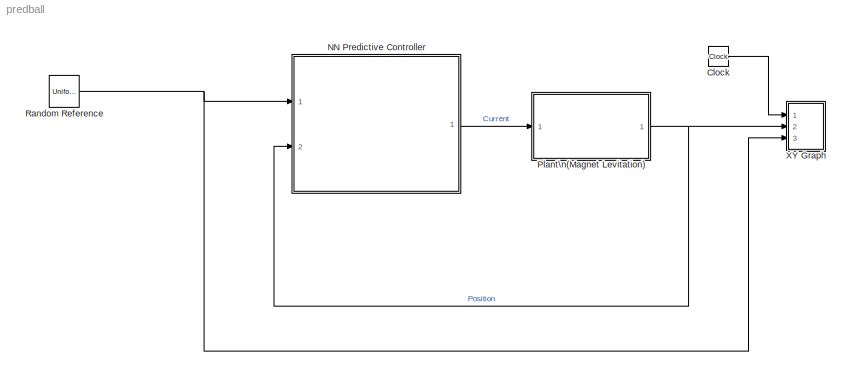
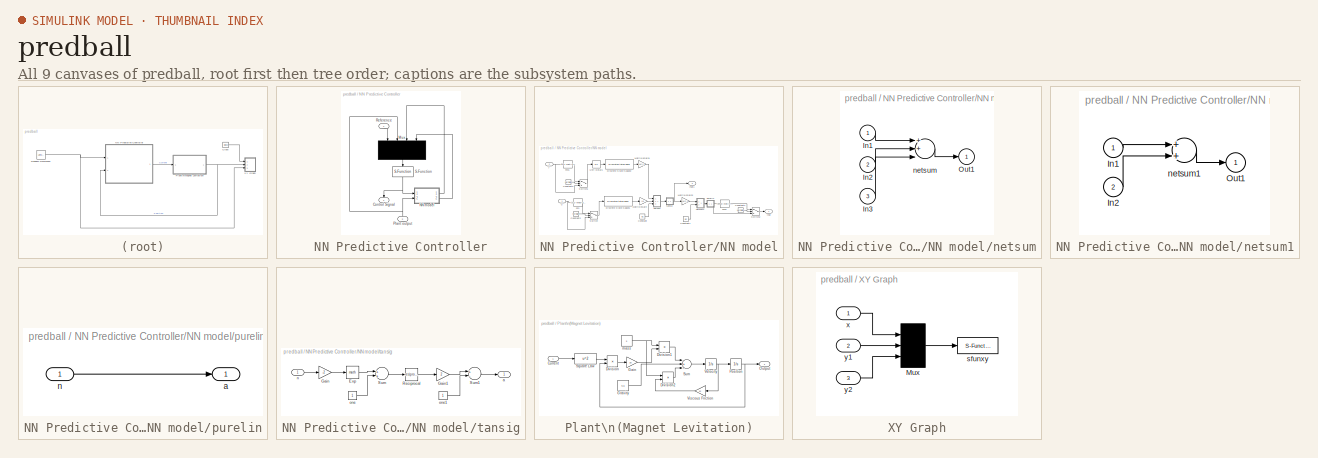
[diagram: thumbnail index - all 9 canvases of the model, root first then tree order]
MODEL predball
KIND model
BLOCK [Clock] Clock
  SID = 1
BLOCK [SubSystem] NN Predictive Controller
  OpenFcn = nncontrolutil('nnpredict','',gcbh,gcb);
  Ports = [2, 1]
  RequestExecContextInheritance = off
  SID = 2
  Variant = off
BLOCK [Outport] NN Predictive Controller/Control Signal
  IconDisplay = Port number
  SID = 54
BLOCK [Mux] NN Predictive Controller/Mux
  DisplayOption = signals
  Ports = [4, 1]
  SID = 5
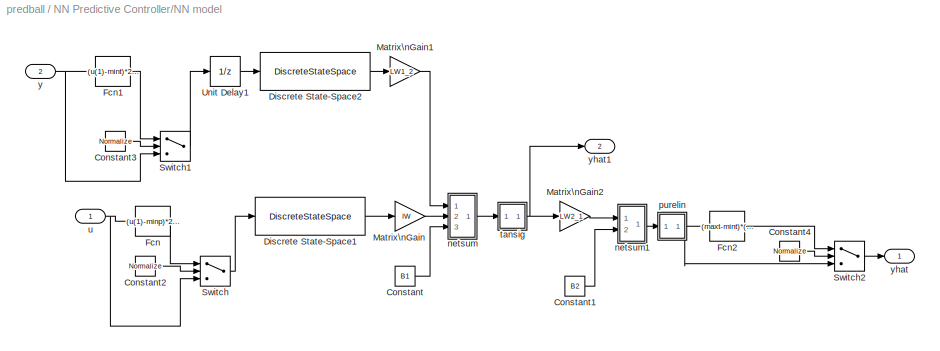
BLOCK [SubSystem] NN Predictive Controller/NN model
  Ports = [2, 2]
  RequestExecContextInheritance = off
  SID = 6
  Variant = off
BLOCK [Constant] NN Predictive Controller/NN model/Constant
  SID = 9
  Value = B1
BLOCK [Constant] NN Predictive Controller/NN model/Constant1
  SID = 10
  Value = B2
BLOCK [Constant] NN Predictive Controller/NN model/Constant2
  SID = 11
  Value = Normalize
BLOCK [Constant] NN Predictive Controller/NN model/Constant3
  SID = 12
  Value = Normalize
BLOCK [Constant] NN Predictive Controller/NN model/Constant4
  SID = 13
  Value = Normalize
BLOCK [DiscreteStateSpace] NN Predictive Controller/NN model/Discrete State-Space1
  A = [zeros(1,Ni-1);eye(Ni-2,Ni-1)] %0 %[0 0;1 0]
  B = eye(Ni-1,1) %1 %[1;0]
  C = [zeros(1,Ni-1);eye(Ni-1,Ni-1)] %[0;1] %[1 0;0 1]
  D = eye(Ni,1)  %[1;0] %[0;0]
  SID = 14
  SampleTime = Ts
BLOCK [DiscreteStateSpace] NN Predictive Controller/NN model/Discrete State-Space2
  A = [zeros(1,Nj-1);eye(Nj-2,Nj-1)] %0 %[0 0;1 0]
  B = eye(Nj-1,1) %1 %[1;0]
  C = [zeros(1,Nj-1);eye(Nj-1,Nj-1)] %[0;1] %[1 0;0 1]
  D = eye(Nj,1)  %[1;0] %[0;0]
  SID = 15
  SampleTime = Ts
BLOCK [Fcn] NN Predictive Controller/NN model/Fcn
  Expr = (u(1)-minp)*2/(maxp-minp) - 1
  SID = 16
BLOCK [Fcn] NN Predictive Controller/NN model/Fcn1
  Expr = (u(1)-mint)*2/(maxt-mint) - 1
  SID = 17
BLOCK [Fcn] NN Predictive Controller/NN model/Fcn2
  Expr = (maxt-mint)*(u(1)+1)/2 + mint
  SID = 18
BLOCK [Gain] NN Predictive Controller/NN model/Matrix\nGain
  Gain = IW
  Multiplication = Matrix(K*u)
  SID = 19
BLOCK [Gain] NN Predictive Controller/NN model/Matrix\nGain1
  Gain = LW1_2
  Multiplication = Matrix(K*u)
  SID = 20
BLOCK [Gain] NN Predictive Controller/NN model/Matrix\nGain2
  Gain = LW2_1
  Multiplication = Matrix(K*u)
  SID = 21
BLOCK [Switch] NN Predictive Controller/NN model/Switch
  SID = 22
  Threshold = 0.5
BLOCK [Switch] NN Predictive Controller/NN model/Switch1
  SID = 23
  Threshold = 0.5
BLOCK [Switch] NN Predictive Controller/NN model/Switch2
  SID = 24
  Threshold = 0.5
BLOCK [UnitDelay] NN Predictive Controller/NN model/Unit Delay1
  SID = 25
  SampleTime = Ts
BLOCK [SubSystem] NN Predictive Controller/NN model/netsum
  Ports = [3, 1]
  RequestExecContextInheritance = off
  SID = 26
  Variant = off
BLOCK [Inport] NN Predictive Controller/NN model/netsum/In1
  IconDisplay = Port number
  SID = 27
BLOCK [Inport] NN Predictive Controller/NN model/netsum/In2
  IconDisplay = Port number
  Port = 2
  SID = 28
BLOCK [Inport] NN Predictive Controller/NN model/netsum/In3
  IconDisplay = Port number
  Port = 3
  SID = 29
BLOCK [Outport] NN Predictive Controller/NN model/netsum/Out1
  IconDisplay = Port number
  SID = 31
BLOCK [Sum] NN Predictive Controller/NN model/netsum/netsum
  Inputs = 3
  Ports = [3, 1]
  SID = 30
BLOCK [SubSystem] NN Predictive Controller/NN model/netsum1
  Ports = [2, 1]
  RequestExecContextInheritance = off
  SID = 32
  Variant = off
BLOCK [Inport] NN Predictive Controller/NN model/netsum1/In1
  IconDisplay = Port number
  SID = 33
BLOCK [Inport] NN Predictive Controller/NN model/netsum1/In2
  IconDisplay = Port number
  Port = 2
  SID = 34
BLOCK [Outport] NN Predictive Controller/NN model/netsum1/Out1
  IconDisplay = Port number
  SID = 36
BLOCK [Sum] NN Predictive Controller/NN model/netsum1/netsum1
  Inputs = 2
  Ports = [2, 1]
  SID = 35
BLOCK [SubSystem] NN Predictive Controller/NN model/purelin
  Ports = [1, 1]
  RequestExecContextInheritance = off
  SID = 37
  Variant = off
BLOCK [Outport] NN Predictive Controller/NN model/purelin/a
  IconDisplay = Port number
  SID = 39
BLOCK [Inport] NN Predictive Controller/NN model/purelin/n
  IconDisplay = Port number
  SID = 38
BLOCK [SubSystem] NN Predictive Controller/NN model/tansig
  Ports = [1, 1]
  RequestExecContextInheritance = off
  SID = 40
  Variant = off
BLOCK [Math] NN Predictive Controller/NN model/tansig/Exp
  Ports = [1, 1]
  SID = 42
BLOCK [Gain] NN Predictive Controller/NN model/tansig/Gain
  Gain = -2
  SID = 43
BLOCK [Gain] NN Predictive Controller/NN model/tansig/Gain1
  Gain = 2
  SID = 44
BLOCK [Math] NN Predictive Controller/NN model/tansig/Reciprocal
  Operator = reciprocal
  Ports = [1, 1]
  SID = 45
BLOCK [Sum] NN Predictive Controller/NN model/tansig/Sum
  Ports = [2, 1]
  SID = 46
BLOCK [Sum] NN Predictive Controller/NN model/tansig/Sum1
  Inputs = +-
  Ports = [2, 1]
  SID = 47
BLOCK [Outport] NN Predictive Controller/NN model/tansig/a
  IconDisplay = Port number
  SID = 50
BLOCK [Inport] NN Predictive Controller/NN model/tansig/n
  IconDisplay = Port number
  SID = 41
BLOCK [Constant] NN Predictive Controller/NN model/tansig/one
  SID = 48
BLOCK [Constant] NN Predictive Controller/NN model/tansig/one1
  SID = 49
BLOCK [Inport] NN Predictive Controller/NN model/u
  IconDisplay = Port number
  SID = 7
BLOCK [Inport] NN Predictive Controller/NN model/y
  IconDisplay = Port number
  Port = 2
  SID = 8
BLOCK [Outport] NN Predictive Controller/NN model/yhat
  IconDisplay = Port number
  SID = 51
BLOCK [Outport] NN Predictive Controller/NN model/yhat1
  IconDisplay = Port number
  Port = 2
  SID = 52
BLOCK [Inport] NN Predictive Controller/Plant output
  IconDisplay = Port number
  Port = 2
  SID = 4
BLOCK [Inport] NN Predictive Controller/Reference
  IconDisplay = Port number
  SID = 3
BLOCK [S-Function] NN Predictive Controller/S-Function
  EnableBusSupport = off
  FunctionName = predopt
  Parameters = N2,Ts,Nu,maxiter,csrchfun,rho,alpha,S1,IW,LW1_2,LW2_1,B1,B2,Ni,Nj,min_i,max_i,minp,maxp,mint,maxt,Normalize
  Ports = [1, 1]
  SFunctionDeploymentMode = off
  SID = 53
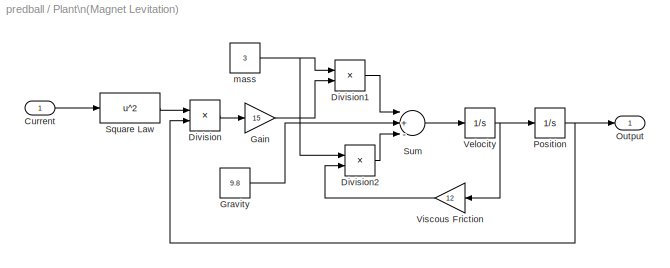
BLOCK [SubSystem] Plant\n(Magnet Levitation)
  Ports = [1, 1]
  RequestExecContextInheritance = off
  SID = 55
  Variant = off
BLOCK [Inport] Plant\n(Magnet Levitation)/Current
  IconDisplay = Port number
  SID = 56
BLOCK [Product] Plant\n(Magnet Levitation)/Division
  Inputs = */
  Ports = [2, 1]
  RndMeth = Floor
  SID = 57
BLOCK [Product] Plant\n(Magnet Levitation)/Division1
  Inputs = /*
  Ports = [2, 1]
  RndMeth = Floor
  SID = 58
BLOCK [Product] Plant\n(Magnet Levitation)/Division2
  Inputs = /*
  Ports = [2, 1]
  RndMeth = Floor
  SID = 59
BLOCK [Gain] Plant\n(Magnet Levitation)/Gain
  Gain = 15
  SID = 60
BLOCK [Constant] Plant\n(Magnet Levitation)/Gravity
  SID = 61
  Value = 9.8
BLOCK [Outport] Plant\n(Magnet Levitation)/Output
  IconDisplay = Port number
  SID = 68
BLOCK [Integrator] Plant\n(Magnet Levitation)/Position
  InitialCondition = .5
  Ports = [1, 1]
  SID = 62
BLOCK [Fcn] Plant\n(Magnet Levitation)/Square Law
  Expr = u^2
  SID = 63
BLOCK [Sum] Plant\n(Magnet Levitation)/Sum
  Inputs = |+--
  Ports = [3, 1]
  SID = 64
BLOCK [Integrator] Plant\n(Magnet Levitation)/Velocity
  Ports = [1, 1]
  SID = 65
BLOCK [Gain] Plant\n(Magnet Levitation)/Viscous Friction
  Gain = 12
  SID = 66
BLOCK [Constant] Plant\n(Magnet Levitation)/mass
  SID = 67
  Value = 3
BLOCK [UniformRandomNumber] Random Reference
  Maximum = 3
  Minimum = 0.5
  SID = 69
  SampleTime = 5
  Seed = round(now)
BLOCK [SubSystem] XY Graph
  CopyFcn = sfunxy2([],[],[],'CopyBlock')
  DeleteFcn = sfunxy2([],[],[],'DeleteBlock')
  LoadFcn = sfunxy2([],[],[],'LoadBlock')
  NameChangeFcn = sfunxy2([],[],[],'NameChange')
  Ports = [3]
  RequestExecContextInheritance = off
  SID = 70
  StartFcn = sfunxy2([],[],[],'Start')
  StopFcn = sfunxy2([],[],[],'Stop')
  Variant = off
BLOCK [Mux] XY Graph/Mux
  Inputs = 3
  Ports = [3, 1]
  SID = 70:4
BLOCK [S-Function] XY Graph/sfunxy
  EnableBusSupport = off
  FunctionName = sfunxy2
  Parameters = [xmin xmax ymin ymax], st
  Ports = [1]
  SFunctionDeploymentMode = off
  SID = 70:5
BLOCK [Inport] XY Graph/x
  IconDisplay = Port number
  SID = 70:1
BLOCK [Inport] XY Graph/y1
  IconDisplay = Port number
  Port = 2
  SID = 70:2
BLOCK [Inport] XY Graph/y2
  IconDisplay = Port number
  Port = 3
  SID = 70:3
LINE Clock:1 -> XY Graph:1
LINE NN Predictive Controller/Mux:1 -> NN Predictive Controller/S-Function:1
LINE NN Predictive Controller/NN model/Constant1:1 -> NN Predictive Controller/NN model/netsum1:2
LINE NN Predictive Controller/NN model/Constant2:1 -> NN Predictive Controller/NN model/Switch:2
LINE NN Predictive Controller/NN model/Constant3:1 -> NN Predictive Controller/NN model/Switch1:2
LINE NN Predictive Controller/NN model/Constant4:1 -> NN Predictive Controller/NN model/Switch2:2
LINE NN Predictive Controller/NN model/Constant:1 -> NN Predictive Controller/NN model/netsum:3
LINE NN Predictive Controller/NN model/Discrete State-Space1:1 -> NN Predictive Controller/NN model/Matrix\nGain:1
LINE NN Predictive Controller/NN model/Discrete State-Space2:1 -> NN Predictive Controller/NN model/Matrix\nGain1:1
LINE NN Predictive Controller/NN model/Fcn1:1 -> NN Predictive Controller/NN model/Switch1:1
LINE NN Predictive Controller/NN model/Fcn2:1 -> NN Predictive Controller/NN model/Switch2:1
LINE NN Predictive Controller/NN model/Fcn:1 -> NN Predictive Controller/NN model/Switch:1
LINE NN Predictive Controller/NN model/Matrix\nGain1:1 -> NN Predictive Controller/NN model/netsum:1
LINE NN Predictive Controller/NN model/Matrix\nGain2:1 -> NN Predictive Controller/NN model/netsum1:1
LINE NN Predictive Controller/NN model/Matrix\nGain:1 -> NN Predictive Controller/NN model/netsum:2
LINE NN Predictive Controller/NN model/Switch1:1 -> NN Predictive Controller/NN model/Unit Delay1:1
LINE NN Predictive Controller/NN model/Switch2:1 -> NN Predictive Controller/NN model/yhat:1
LINE NN Predictive Controller/NN model/Switch:1 -> NN Predictive Controller/NN model/Discrete State-Space1:1
LINE NN Predictive Controller/NN model/Unit Delay1:1 -> NN Predictive Controller/NN model/Discrete State-Space2:1
LINE NN Predictive Controller/NN model/netsum/In1:1 -> NN Predictive Controller/NN model/netsum/netsum:1
LINE NN Predictive Controller/NN model/netsum/In2:1 -> NN Predictive Controller/NN model/netsum/netsum:2
LINE NN Predictive Controller/NN model/netsum/In3:1 -> NN Predictive Controller/NN model/netsum/netsum:3
LINE NN Predictive Controller/NN model/netsum/netsum:1 -> NN Predictive Controller/NN model/netsum/Out1:1
LINE NN Predictive Controller/NN model/netsum1/In1:1 -> NN Predictive Controller/NN model/netsum1/netsum1:1
LINE NN Predictive Controller/NN model/netsum1/In2:1 -> NN Predictive Controller/NN model/netsum1/netsum1:2
LINE NN Predictive Controller/NN model/netsum1/netsum1:1 -> NN Predictive Controller/NN model/netsum1/Out1:1
LINE NN Predictive Controller/NN model/netsum1:1 -> NN Predictive Controller/NN model/purelin:1
LINE NN Predictive Controller/NN model/netsum:1 -> NN Predictive Controller/NN model/tansig:1
LINE NN Predictive Controller/NN model/purelin/n:1 -> NN Predictive Controller/NN model/purelin/a:1
NET NN Predictive Controller/NN model/purelin:1 -> NN Predictive Controller/NN model/Fcn2:1, NN Predictive Controller/NN model/Switch2:3
LINE NN Predictive Controller/NN model/tansig/Exp:1 -> NN Predictive Controller/NN model/tansig/Sum:1
LINE NN Predictive Controller/NN model/tansig/Gain1:1 -> NN Predictive Controller/NN model/tansig/Sum1:1
LINE NN Predictive Controller/NN model/tansig/Gain:1 -> NN Predictive Controller/NN model/tansig/Exp:1
LINE NN Predictive Controller/NN model/tansig/Reciprocal:1 -> NN Predictive Controller/NN model/tansig/Gain1:1
LINE NN Predictive Controller/NN model/tansig/Sum1:1 -> NN Predictive Controller/NN model/tansig/a:1
LINE NN Predictive Controller/NN model/tansig/Sum:1 -> NN Predictive Controller/NN model/tansig/Reciprocal:1
LINE NN Predictive Controller/NN model/tansig/n:1 -> NN Predictive Controller/NN model/tansig/Gain:1
LINE NN Predictive Controller/NN model/tansig/one1:1 -> NN Predictive Controller/NN model/tansig/Sum1:2
LINE NN Predictive Controller/NN model/tansig/one:1 -> NN Predictive Controller/NN model/tansig/Sum:2
NET NN Predictive Controller/NN model/tansig:1 -> NN Predictive Controller/NN model/Matrix\nGain2:1, NN Predictive Controller/NN model/yhat1:1
NET NN Predictive Controller/NN model/u:1 -> NN Predictive Controller/NN model/Fcn:1, NN Predictive Controller/NN model/Switch:3
NET NN Predictive Controller/NN model/y:1 -> NN Predictive Controller/NN model/Fcn1:1, NN Predictive Controller/NN model/Switch1:3
LINE NN Predictive Controller/NN model:1 -> NN Predictive Controller/Mux:3
LINE NN Predictive Controller/NN model:2 -> NN Predictive Controller/Mux:4
NET NN Predictive Controller/Plant output:1 -> NN Predictive Controller/Mux:2, NN Predictive Controller/NN model:2
LINE NN Predictive Controller/Reference:1 -> NN Predictive Controller/Mux:1
NET NN Predictive Controller/S-Function:1 -> NN Predictive Controller/Control Signal:1, NN Predictive Controller/NN model:1
LINE NN Predictive Controller:1 -> Plant\n(Magnet Levitation):1
LINE Plant\n(Magnet Levitation)/Current:1 -> Plant\n(Magnet Levitation)/Square Law:1
LINE Plant\n(Magnet Levitation)/Division1:1 -> Plant\n(Magnet Levitation)/Sum:1
LINE Plant\n(Magnet Levitation)/Division2:1 -> Plant\n(Magnet Levitation)/Sum:3
LINE Plant\n(Magnet Levitation)/Division:1 -> Plant\n(Magnet Levitation)/Gain:1
LINE Plant\n(Magnet Levitation)/Gain:1 -> Plant\n(Magnet Levitation)/Division1:2
LINE Plant\n(Magnet Levitation)/Gravity:1 -> Plant\n(Magnet Levitation)/Sum:2
NET Plant\n(Magnet Levitation)/Position:1 -> Plant\n(Magnet Levitation)/Division:2, Plant\n(Magnet Levitation)/Output:1
LINE Plant\n(Magnet Levitation)/Square Law:1 -> Plant\n(Magnet Levitation)/Division:1
LINE Plant\n(Magnet Levitation)/Sum:1 -> Plant\n(Magnet Levitation)/Velocity:1
NET Plant\n(Magnet Levitation)/Velocity:1 -> Plant\n(Magnet Levitation)/Position:1, Plant\n(Magnet Levitation)/Viscous Friction:1
LINE Plant\n(Magnet Levitation)/Viscous Friction:1 -> Plant\n(Magnet Levitation)/Division2:2
NET Plant\n(Magnet Levitation)/mass:1 -> Plant\n(Magnet Levitation)/Division1:1, Plant\n(Magnet Levitation)/Division2:1
NET Plant\n(Magnet Levitation):1 -> NN Predictive Controller:2, XY Graph:2
NET Random Reference:1 -> NN Predictive Controller:1, XY Graph:3
LINE XY Graph/Mux:1 -> XY Graph/sfunxy:1
LINE XY Graph/x:1 -> XY Graph/Mux:1
LINE XY Graph/y1:1 -> XY Graph/Mux:2
LINE XY Graph/y2:1 -> XY Graph/Mux:3
note: NET lines group one-source signal fan-out (src -> all destinations, sorted); 1:1 wires keep LINE
